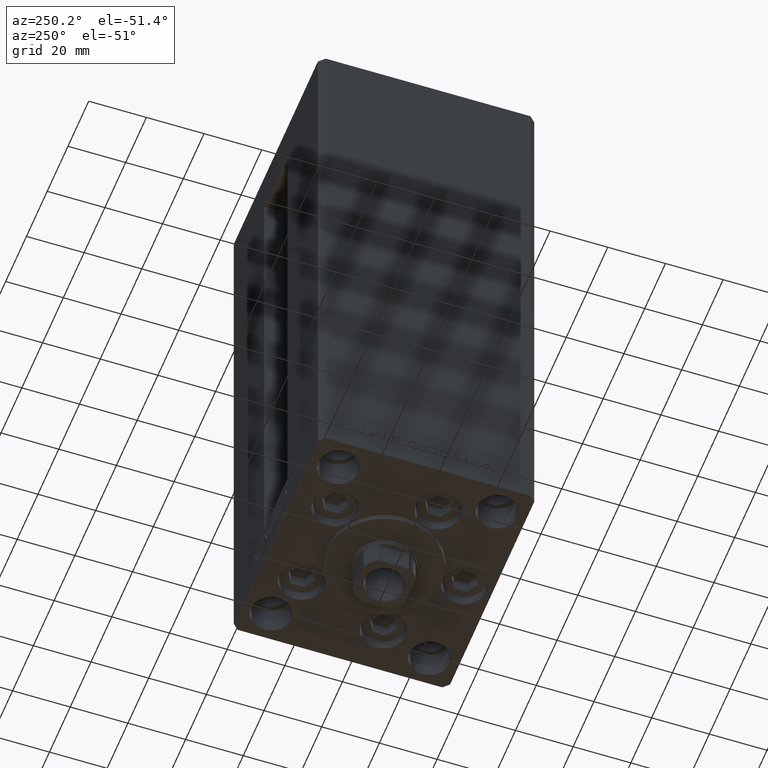
[diagram: clean part render]
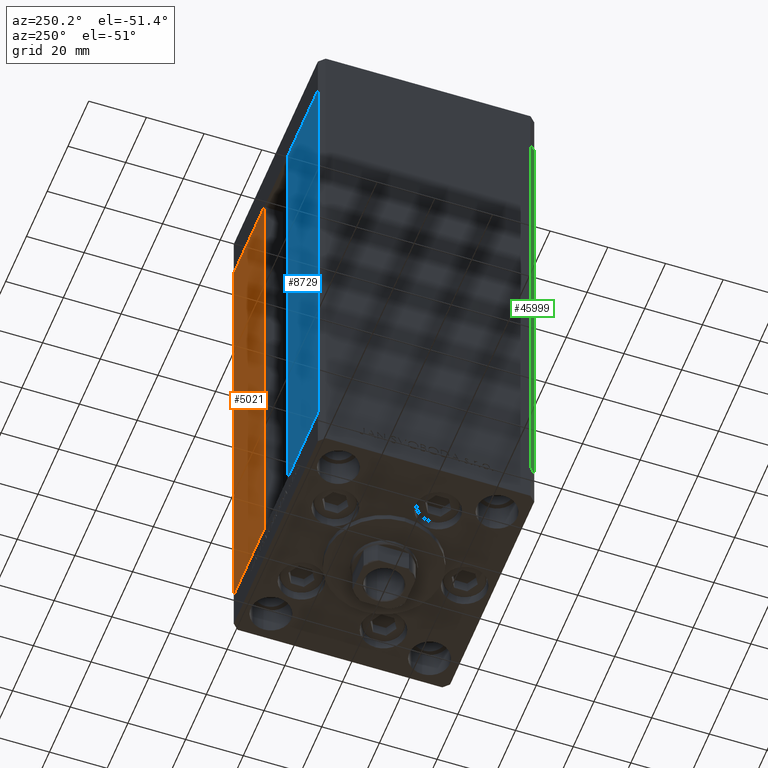
[diagram: same view with three faces highlighted in distinct colors, each labeled with its STEP entity id]
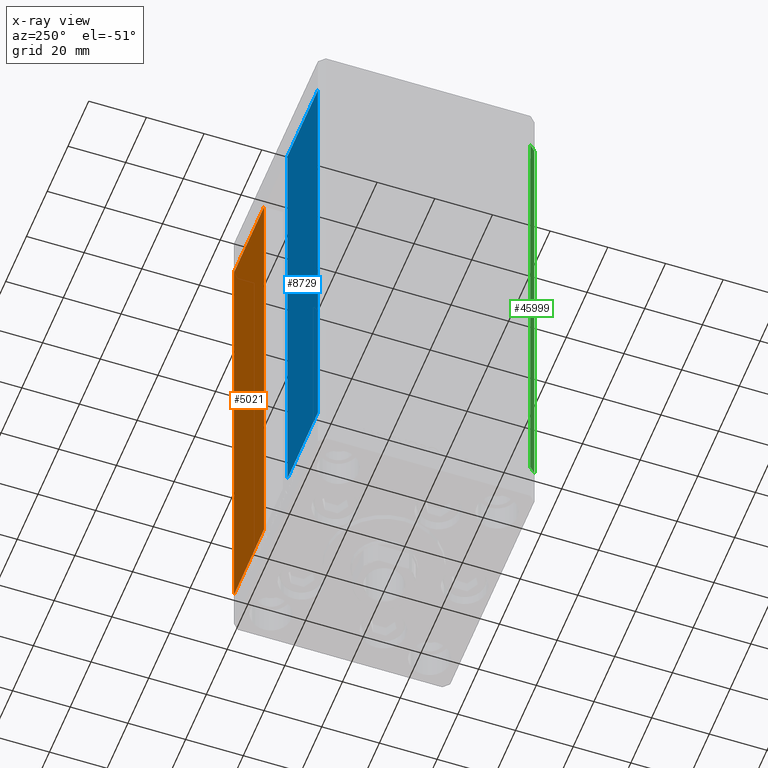
[diagram: x-ray of the same camera — body ghosted, the three highlighted faces saturated]
A machine part, auxiliary view with three faces highlighted in distinct colors.
The next image is the same camera in x-ray (body ghosted, the three faces saturated) — at least one of them is partly hidden behind the body in this view.
Their STEP definitions:

[orange] entity #5021 — the highlighted planar face has unit normal (-0, -1, 0).
#539 = DIRECTION ( 'NONE',  ( -1.000000000000000000, 2.372271420139223331E-16, 0.000000000000000000 ) ) ;
#2471 = LINE ( 'NONE', #3461, #40122 ) ;
#2670 = CARTESIAN_POINT ( 'NONE',  ( -11.25000000000000000, 37.50000000000000000, 168.5000000000000000 ) ) ;
#2979 = VERTEX_POINT ( 'NONE', #43626 ) ;
#3461 = CARTESIAN_POINT ( 'NONE',  ( 40.50000000000000000, 37.50000000000000711, 168.5000000000000000 ) ) ;
#5021 = ADVANCED_FACE ( 'NONE', ( #13887 ), #21856, .F. ) ;
#5516 = VECTOR ( 'NONE', #539, 1000.000000000000000 ) ;
#5581 = ORIENTED_EDGE ( 'NONE', *, *, #17137, .T. ) ;
#6273 = DIRECTION ( 'NONE',  ( 1.000000000000000000, 0.000000000000000000, 0.000000000000000000 ) ) ;
#6957 = CARTESIAN_POINT ( 'NONE',  ( 40.50000000000000000, 37.50000000000000711, 0.000000000000000000 ) ) ;
#7872 = EDGE_CURVE ( 'NONE', #30092, #2979, #44131, .T. ) ;
#8329 = EDGE_CURVE ( 'NONE', #2979, #23469, #2471, .T. ) ;
#9142 = VECTOR ( 'NONE', #6273, 1000.000000000000000 ) ;
#11541 = VERTEX_POINT ( 'NONE', #45472 ) ;
#12443 = LINE ( 'NONE', #46803, #21209 ) ;
#13334 = ORIENTED_EDGE ( 'NONE', *, *, #23286, .T. ) ;
#13887 = FACE_OUTER_BOUND ( 'NONE', #15945, .T. ) ;
#14882 = DIRECTION ( 'NONE',  ( -2.372271420139223331E-16, -1.000000000000000000, 0.000000000000000000 ) ) ;
#15945 = EDGE_LOOP ( 'NONE', ( #13334, #5581, #47221, #26796 ) ) ;
#17137 = EDGE_CURVE ( 'NONE', #11541, #30092, #12443, .T. ) ;
#18154 = DIRECTION ( 'NONE',  ( -0.000000000000000000, -0.000000000000000000, -1.000000000000000000 ) ) ;
#21209 = VECTOR ( 'NONE', #28122, 1000.000000000000000 ) ;
#21856 = PLANE ( 'NONE',  #29145 ) ;
#23286 = EDGE_CURVE ( 'NONE', #23469, #11541, #45882, .T. ) ;
#23469 = VERTEX_POINT ( 'NONE', #6957 ) ;
#25202 = CARTESIAN_POINT ( 'NONE',  ( -11.25000000000000000, 37.50000000000000000, 168.5000000000000000 ) ) ;
#26796 = ORIENTED_EDGE ( 'NONE', *, *, #8329, .T. ) ;
#28122 = DIRECTION ( 'NONE',  ( -0.000000000000000000, -0.000000000000000000, 1.000000000000000000 ) ) ;
#29145 = AXIS2_PLACEMENT_3D ( 'NONE', #2670, #14882, #49008 ) ;
#30092 = VERTEX_POINT ( 'NONE', #32803 ) ;
#30927 = CARTESIAN_POINT ( 'NONE',  ( -11.25000000000000000, 37.50000000000000000, 0.000000000000000000 ) ) ;
#32803 = CARTESIAN_POINT ( 'NONE',  ( 11.24999999999999289, 37.50000000000000000, 168.5000000000000000 ) ) ;
#40122 = VECTOR ( 'NONE', #18154, 1000.000000000000000 ) ;
#43626 = CARTESIAN_POINT ( 'NONE',  ( 40.50000000000000000, 37.50000000000000711, 168.5000000000000000 ) ) ;
#44131 = LINE ( 'NONE', #25202, #9142 ) ;
#45472 = CARTESIAN_POINT ( 'NONE',  ( 11.25000000000000000, 37.50000000000000000, 0.000000000000000000 ) ) ;
#45882 = LINE ( 'NONE', #30927, #5516 ) ;
#46803 = CARTESIAN_POINT ( 'NONE',  ( 11.25000000000000000, 37.50000000000000000, 0.000000000000000000 ) ) ;
#47221 = ORIENTED_EDGE ( 'NONE', *, *, #7872, .T. ) ;
#49008 = DIRECTION ( 'NONE',  ( 1.000000000000000000, -2.372271420139223331E-16, 0.000000000000000000 ) ) ;

[blue] entity #8729 — the highlighted planar face has unit normal (-0, -1, 0).
#1610 = DIRECTION ( 'NONE',  ( 1.000000000000000000, -2.372271420139223331E-16, 0.000000000000000000 ) ) ;
#2476 = CARTESIAN_POINT ( 'NONE',  ( -11.25000000000000000, 37.50000000000000000, 0.000000000000000000 ) ) ;
#3398 = EDGE_CURVE ( 'NONE', #31339, #29461, #23089, .T. ) ;
#3896 = VECTOR ( 'NONE', #17425, 1000.000000000000000 ) ;
#7311 = CARTESIAN_POINT ( 'NONE',  ( -11.25000000000000000, 37.50000000000000000, 168.5000000000000000 ) ) ;
#8729 = ADVANCED_FACE ( 'NONE', ( #39715 ), #40203, .F. ) ;
#8834 = CARTESIAN_POINT ( 'NONE',  ( -40.50000000000000000, 37.50000000000000711, 168.5000000000000000 ) ) ;
#11521 = DIRECTION ( 'NONE',  ( -1.000000000000000000, 2.372271420139223331E-16, 0.000000000000000000 ) ) ;
#16342 = DIRECTION ( 'NONE',  ( 1.000000000000000000, 0.000000000000000000, 0.000000000000000000 ) ) ;
#17425 = DIRECTION ( 'NONE',  ( -0.000000000000000000, -0.000000000000000000, 1.000000000000000000 ) ) ;
#19695 = VERTEX_POINT ( 'NONE', #47639 ) ;
#21990 = EDGE_CURVE ( 'NONE', #19695, #29461, #40827, .T. ) ;
#22949 = LINE ( 'NONE', #34407, #24655 ) ;
#23089 = LINE ( 'NONE', #34538, #26765 ) ;
#24655 = VECTOR ( 'NONE', #30675, 1000.000000000000000 ) ;
#26765 = VECTOR ( 'NONE', #16342, 1000.000000000000000 ) ;
#27447 = AXIS2_PLACEMENT_3D ( 'NONE', #44177, #43455, #1610 ) ;
#28139 = VERTEX_POINT ( 'NONE', #35410 ) ;
#29441 = CARTESIAN_POINT ( 'NONE',  ( -11.25000000000000000, 37.50000000000000000, 0.000000000000000000 ) ) ;
#29461 = VERTEX_POINT ( 'NONE', #7311 ) ;
#29546 = VECTOR ( 'NONE', #11521, 1000.000000000000000 ) ;
#29674 = EDGE_CURVE ( 'NONE', #31339, #28139, #22949, .T. ) ;
#30675 = DIRECTION ( 'NONE',  ( -0.000000000000000000, -0.000000000000000000, -1.000000000000000000 ) ) ;
#31195 = ORIENTED_EDGE ( 'NONE', *, *, #41531, .T. ) ;
#31339 = VERTEX_POINT ( 'NONE', #8834 ) ;
#33647 = ORIENTED_EDGE ( 'NONE', *, *, #21990, .F. ) ;
#33686 = LINE ( 'NONE', #29441, #29546 ) ;
#33711 = EDGE_LOOP ( 'NONE', ( #34557, #33647, #31195, #35402 ) ) ;
#34407 = CARTESIAN_POINT ( 'NONE',  ( -40.50000000000000000, 37.50000000000000711, 168.5000000000000000 ) ) ;
#34538 = CARTESIAN_POINT ( 'NONE',  ( -11.25000000000000000, 37.50000000000000000, 168.5000000000000000 ) ) ;
#34557 = ORIENTED_EDGE ( 'NONE', *, *, #3398, .T. ) ;
#35402 = ORIENTED_EDGE ( 'NONE', *, *, #29674, .F. ) ;
#35410 = CARTESIAN_POINT ( 'NONE',  ( -40.50000000000000000, 37.50000000000000711, 0.000000000000000000 ) ) ;
#39715 = FACE_OUTER_BOUND ( 'NONE', #33711, .T. ) ;
#40203 = PLANE ( 'NONE',  #27447 ) ;
#40827 = LINE ( 'NONE', #2476, #3896 ) ;
#41531 = EDGE_CURVE ( 'NONE', #19695, #28139, #33686, .T. ) ;
#43455 = DIRECTION ( 'NONE',  ( -2.372271420139223331E-16, -1.000000000000000000, 0.000000000000000000 ) ) ;
#44177 = CARTESIAN_POINT ( 'NONE',  ( -11.25000000000000000, 37.50000000000000000, 168.5000000000000000 ) ) ;
#47639 = CARTESIAN_POINT ( 'NONE',  ( -11.25000000000000000, 37.50000000000000000, 0.000000000000000000 ) ) ;

[green] entity #45999 — the highlighted planar face has unit normal (0.7071, 0.7071, 0).
#2128 = LINE ( 'NONE', #17318, #18198 ) ;
#3227 = VERTEX_POINT ( 'NONE', #31641 ) ;
#3961 = VECTOR ( 'NONE', #13892, 1000.000000000000000 ) ;
#5998 = CARTESIAN_POINT ( 'NONE',  ( -40.49999999999998579, -37.50000000000000711, 0.000000000000000000 ) ) ;
#8089 = CARTESIAN_POINT ( 'NONE',  ( -42.49999999999998579, -35.50000000000000711, 0.000000000000000000 ) ) ;
#8249 = CARTESIAN_POINT ( 'NONE',  ( -42.49999999999998579, -35.50000000000000711, 168.5000000000000000 ) ) ;
#11924 = VECTOR ( 'NONE', #15820, 1000.000000000000000 ) ;
#13132 = EDGE_LOOP ( 'NONE', ( #29990, #29082, #31137, #27020 ) ) ;
#13892 = DIRECTION ( 'NONE',  ( -0.000000000000000000, -0.000000000000000000, -1.000000000000000000 ) ) ;
#15347 = VERTEX_POINT ( 'NONE', #43482 ) ;
#15820 = DIRECTION ( 'NONE',  ( -0.000000000000000000, -0.000000000000000000, -1.000000000000000000 ) ) ;
#16370 = EDGE_CURVE ( 'NONE', #15347, #16877, #30262, .T. ) ;
#16877 = VERTEX_POINT ( 'NONE', #5998 ) ;
#17318 = CARTESIAN_POINT ( 'NONE',  ( -42.49999999999998579, -35.50000000000000711, 168.5000000000000000 ) ) ;
#17831 = CARTESIAN_POINT ( 'NONE',  ( -42.49999999999998579, -35.50000000000000711, 168.5000000000000000 ) ) ;
#18198 = VECTOR ( 'NONE', #48439, 1000.000000000000114 ) ;
#20196 = DIRECTION ( 'NONE',  ( 0.7071067811865475727, 0.7071067811865475727, -0.000000000000000000 ) ) ;
#24306 = EDGE_CURVE ( 'NONE', #3227, #16877, #33313, .T. ) ;
#26899 = EDGE_CURVE ( 'NONE', #43386, #3227, #2128, .T. ) ;
#27020 = ORIENTED_EDGE ( 'NONE', *, *, #27899, .T. ) ;
#27521 = CARTESIAN_POINT ( 'NONE',  ( -42.49999999999998579, -35.50000000000000711, 168.5000000000000000 ) ) ;
#27899 = EDGE_CURVE ( 'NONE', #43386, #15347, #34748, .T. ) ;
#29082 = ORIENTED_EDGE ( 'NONE', *, *, #24306, .F. ) ;
#29990 = ORIENTED_EDGE ( 'NONE', *, *, #16370, .T. ) ;
#30262 = LINE ( 'NONE', #8089, #33912 ) ;
#31137 = ORIENTED_EDGE ( 'NONE', *, *, #26899, .F. ) ;
#31641 = CARTESIAN_POINT ( 'NONE',  ( -40.49999999999998579, -37.50000000000000711, 168.5000000000000000 ) ) ;
#33313 = LINE ( 'NONE', #39818, #3961 ) ;
#33912 = VECTOR ( 'NONE', #45459, 1000.000000000000114 ) ;
#34748 = LINE ( 'NONE', #27521, #11924 ) ;
#38387 = PLANE ( 'NONE',  #39121 ) ;
#39121 = AXIS2_PLACEMENT_3D ( 'NONE', #8249, #20196, #47326 ) ;
#39818 = CARTESIAN_POINT ( 'NONE',  ( -40.49999999999998579, -37.50000000000000711, 168.5000000000000000 ) ) ;
#42360 = FACE_OUTER_BOUND ( 'NONE', #13132, .T. ) ;
#43386 = VERTEX_POINT ( 'NONE', #17831 ) ;
#43482 = CARTESIAN_POINT ( 'NONE',  ( -42.49999999999998579, -35.50000000000000711, 0.000000000000000000 ) ) ;
#45459 = DIRECTION ( 'NONE',  ( 0.7071067811865474617, -0.7071067811865474617, 0.000000000000000000 ) ) ;
#45999 = ADVANCED_FACE ( 'NONE', ( #42360 ), #38387, .F. ) ;
#47326 = DIRECTION ( 'NONE',  ( -0.7071067811865474617, 0.7071067811865474617, 0.000000000000000000 ) ) ;
#48439 = DIRECTION ( 'NONE',  ( 0.7071067811865474617, -0.7071067811865474617, 0.000000000000000000 ) ) ;